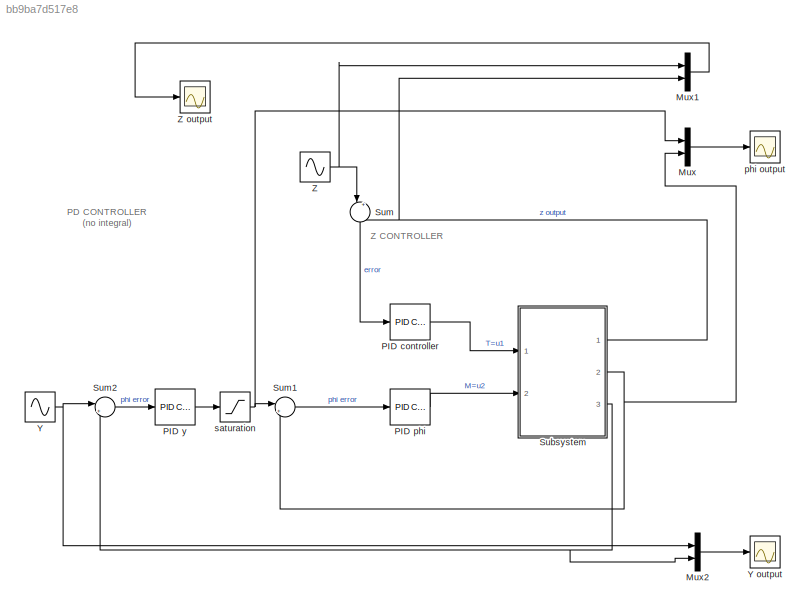
MODEL slx_bb9ba7d517e8
KIND model
CONFIG AbsTol = auto
CONFIG EnableMultiTasking = off
CONFIG FixedStep = auto
CONFIG MaxStep = auto
CONFIG MinStep = auto
CONFIG RelTol = 1e-3
CONFIG SampleTimeConstraint = Unconstrained
CONFIG SolverName = VariableStepAuto
CONFIG StartTime = 0.0
CONFIG StopTime = 10.0
BLOCK [Mux] Mux
  DisplayOption = bar
  Inputs = 2
  Ports = [2, 1]
BLOCK [Mux] Mux1
  DisplayOption = bar
  Inputs = 2
  Ports = [2, 1]
BLOCK [Mux] Mux2
  DisplayOption = bar
  Inputs = 2
  Ports = [2, 1]
BLOCK [Reference] PID controller  REF=pid_lib/PID Controller
  Ports = [1, 1]
  SourceBlock = pid_lib/PID Controller
  SourceProductBaseCode = SL
  SourceType = PID 1dof
BLOCK [Reference] PID phi  REF=pid_lib/PID Controller
  Ports = [1, 1]
  SourceBlock = pid_lib/PID Controller
  SourceProductBaseCode = SL
  SourceType = PID 1dof
BLOCK [Reference] PID y  REF=pid_lib/PID Controller
  Ports = [1, 1]
  SourceBlock = pid_lib/PID Controller
  SourceProductBaseCode = SL
  SourceType = PID 1dof
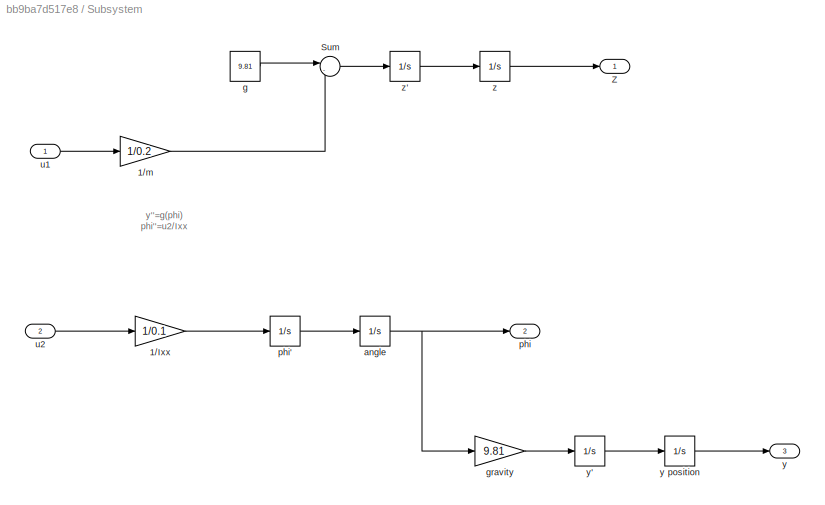
BLOCK [SubSystem] Subsystem
  Ports = [2, 3]
  RequestExecContextInheritance = off
BLOCK [Gain] Subsystem/1//Ixx
  Gain = 1/0.1
BLOCK [Gain] Subsystem/1//m
  Gain = 1/0.2
BLOCK [Sum] Subsystem/Sum
  Inputs = |-+
  Ports = [2, 1]
BLOCK [Outport] Subsystem/Z
BLOCK [Integrator] Subsystem/angle
  Ports = [1, 1]
BLOCK [Constant] Subsystem/g
  Value = 9.81
BLOCK [Gain] Subsystem/gravity
  Gain = 9.81
BLOCK [Outport] Subsystem/phi
  Port = 2
BLOCK [Integrator] Subsystem/phi'
  Ports = [1, 1]
BLOCK [Inport] Subsystem/u1
BLOCK [Inport] Subsystem/u2
  Port = 2
BLOCK [Outport] Subsystem/y
  Port = 3
BLOCK [Integrator] Subsystem/y position
  Ports = [1, 1]
BLOCK [Integrator] Subsystem/y'
  Ports = [1, 1]
BLOCK [Integrator] Subsystem/z
  Ports = [1, 1]
BLOCK [Integrator] Subsystem/z'
  Ports = [1, 1]
BLOCK [Sum] Sum
  Inputs = |+-
  NameLocation = left
  Ports = [2, 1]
BLOCK [Sum] Sum1
  Inputs = |+-
  Ports = [2, 1]
BLOCK [Sum] Sum2
  Inputs = |+-
  Ports = [2, 1]
BLOCK [Sin] Y
  Amplitude = 5
  Ports = [0, 1]
  SampleTime = 0
BLOCK [Scope] Y output
  Floating = off
  NumInputPorts = 1
  Ports = [1]
  ScopeSpecificationString = Simulink.scopes.TimeScopeBlockCfg('CurrentConfiguration', extmgr.ConfigurationSet(extmgr.Configuration('Core','General UI',true),extmgr.Configuration('Core','Source UI',true),extmgr.Configuration('Sources','WiredSimulink',true,'DataLoggingVariableName','ScopeData2'),extmgr.Configuration('Visuals','Time Domain',true,'SerializedDisplays',{struct('MinYLimReal','-7.6292','MaxYLimReal','6.40324','YLabe...<+1425ch>
BLOCK [Sin] Z
  Amplitude = 5
  Ports = [0, 1]
  SampleTime = 0
BLOCK [Scope] Z output
  Floating = off
  NumInputPorts = 1
  Ports = [1]
  ScopeSpecificationString = Simulink.scopes.TimeScopeBlockCfg('CurrentConfiguration', extmgr.ConfigurationSet(extmgr.Configuration('Core','General UI',true),extmgr.Configuration('Core','Source UI',true),extmgr.Configuration('Sources','WiredSimulink',true,'DataLoggingVariableName','ScopeData1'),extmgr.Configuration('Visuals','Time Domain',true,'SerializedDisplays',{struct('MinYLimReal','-6.86041','MaxYLimReal','6.31782','YLab...<+1426ch>
BLOCK [Scope] phi output
  Floating = off
  NumInputPorts = 1
  Ports = [1]
  ScopeSpecificationString = Simulink.scopes.TimeScopeBlockCfg('CurrentConfiguration', extmgr.ConfigurationSet(extmgr.Configuration('Core','General UI',true),extmgr.Configuration('Core','Source UI',true),extmgr.Configuration('Sources','WiredSimulink',true),extmgr.Configuration('Visuals','Time Domain',true,'SerializedDisplays',{struct('MinYLimReal','-1.46565','MaxYLimReal','1.49084','YLabelReal','','MinYLimMag','0.00000','MaxY...<+1399ch>
BLOCK [Saturate] saturation
  LowerLimit = -0.8
  UpperLimit = 0.8
ANNOTATION (root): PD CONTROLLER (no integral)
ANNOTATION (root): Z CONTROLLER
ANNOTATION Subsystem: y''=g(phi) phi''=u2/Ixx
LINE Mux1:1 -> Z output:1
LINE Mux2:1 -> Y output:1
LINE Mux:1 -> phi output:1
LINE PID controller:1 -> Subsystem:1
LINE PID phi:1 -> Subsystem:2
LINE PID y:1 -> saturation:1
LINE Subsystem/1//Ixx:1 -> Subsystem/phi':1
LINE Subsystem/1//m:1 -> Subsystem/Sum:2
LINE Subsystem/Sum:1 -> Subsystem/z':1
NET Subsystem/angle:1 -> Subsystem/gravity:1, Subsystem/phi:1
LINE Subsystem/g:1 -> Subsystem/Sum:1
LINE Subsystem/gravity:1 -> Subsystem/y':1
LINE Subsystem/phi':1 -> Subsystem/angle:1
LINE Subsystem/u1:1 -> Subsystem/1//m:1
LINE Subsystem/u2:1 -> Subsystem/1//Ixx:1
LINE Subsystem/y position:1 -> Subsystem/y:1
LINE Subsystem/y':1 -> Subsystem/y position:1
LINE Subsystem/z':1 -> Subsystem/z:1
LINE Subsystem/z:1 -> Subsystem/Z:1
NET Subsystem:1 -> Mux1:2, Sum:2
NET Subsystem:2 -> Mux:2, Sum1:2
NET Subsystem:3 -> Mux2:2, Sum2:2
LINE Sum1:1 -> PID phi:1
LINE Sum2:1 -> PID y:1
LINE Sum:1 -> PID controller:1
NET Y:1 -> Mux2:1, Sum2:1
NET Z:1 -> Mux1:1, Sum:1
NET saturation:1 -> Mux:1, Sum1:1
note: NET lines group one-source signal fan-out (src -> all destinations, sorted); 1:1 wires keep LINE
